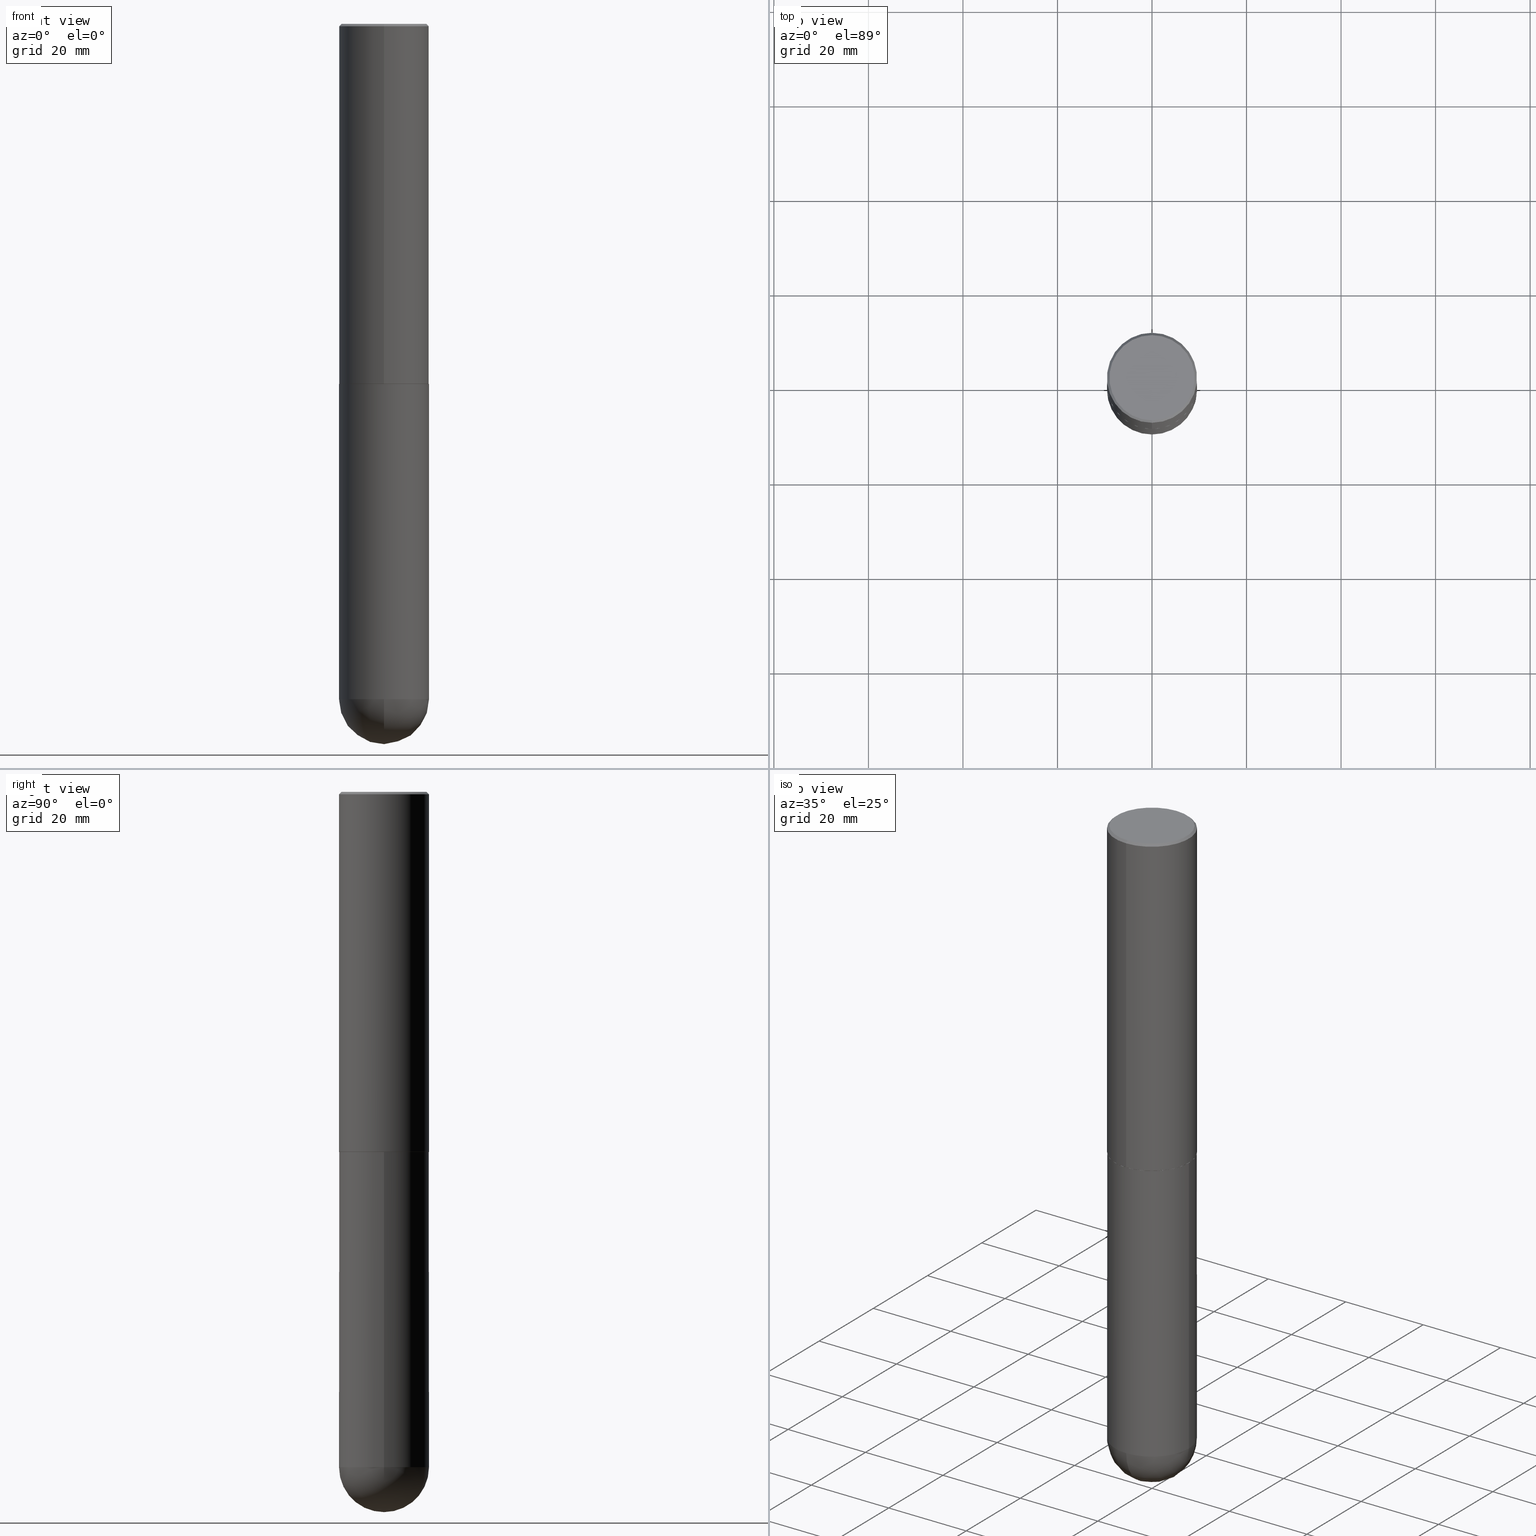
[diagram: canonical four-view strip — front | top / right | iso, engineering-drawing reading convention]
A machine part, canonical four-view strip (front | top / right | iso — engineering-drawing reading convention). The complete STEP part file that produces these views, byte-faithful:
ISO-10303-21;
HEADER;
FILE_DESCRIPTION (( 'STEP AP203' ),
    '1' );
FILE_NAME ('31926.STEP',
    '2024-02-21T17:15:48',
    ( '' ),
    ( '' ),
    'SwSTEP 2.0',
    'SolidWorks 2023',
    '' );
FILE_SCHEMA (( 'CONFIG_CONTROL_DESIGN' ));
ENDSEC;

DATA;
#1 = CC_DESIGN_DATE_AND_TIME_ASSIGNMENT ( #333, #234, ( #125 ) ) ;
#2 = CARTESIAN_POINT ( 'NONE',  ( 0.3750000000000001110, -1.767562427789342178E-14, -5.625000000000000000 ) ) ;
#3 = ORIENTED_EDGE ( 'NONE', *, *, #316, .F. ) ;
#4 = CARTESIAN_POINT ( 'NONE',  ( 7.337074380721108248E-29, -1.047348745669010864E-14, -2.999999999999999556 ) ) ;
#5 = VERTEX_POINT ( 'NONE', #10 ) ;
#6 = APPLICATION_PROTOCOL_DEFINITION ( 'international standard', 'config_control_design', 1994, #301 ) ;
#7 = ORIENTED_EDGE ( 'NONE', *, *, #323, .T. ) ;
#8 = DIRECTION ( 'NONE',  ( 6.982962677686266711E-15, 1.000000000000000000, -2.913971193241873667E-15 ) ) ;
#9 = CC_DESIGN_PERSON_AND_ORGANIZATION_ASSIGNMENT ( #25, #175, ( #238 ) ) ;
#10 = CARTESIAN_POINT ( 'NONE',  ( 2.618611004132489250E-15, 0.3749999999999805711, -5.625000000000000888 ) ) ;
#11 =( NAMED_UNIT ( * ) PLANE_ANGLE_UNIT ( ) SI_UNIT ( $, .RADIAN. ) );
#12 = DIRECTION ( 'NONE',  ( -2.445691460240369790E-29, 3.491162485563369808E-15, 1.000000000000000000 ) ) ;
#13 = DIRECTION ( 'NONE',  ( -2.445468806185136597E-29, 3.491481338843145583E-15, 1.000000000000000000 ) ) ;
#14 = AXIS2_PLACEMENT_3D ( 'NONE', #260, #395, #307 ) ;
#15 = VERTEX_POINT ( 'NONE', #324 ) ;
#16 = ADVANCED_BREP_SHAPE_REPRESENTATION ( '31926', ( #165, #29, #46 ), #397 ) ;
#17 = DIRECTION ( 'NONE',  ( -7.105427357600999492E-15, -1.000000000000000000, 0.000000000000000000 ) ) ;
#18 = DIRECTION ( 'NONE',  ( 6.982962677686266711E-15, 1.000000000000000000, -3.494488891895537218E-15 ) ) ;
#19 = EDGE_CURVE ( 'NONE', #226, #5, #177, .T. ) ;
#20 = CALENDAR_DATE ( 2024, 21, 2 ) ;
#21 = AXIS2_PLACEMENT_3D ( 'NONE', #356, #194, #104 ) ;
#22 = CIRCLE ( 'NONE', #382, 0.3750000000000001110 ) ;
#23 = APPROVAL_STATUS ( 'not_yet_approved' ) ;
#24 = DATE_AND_TIME ( #20, #266 ) ;
#25 = PERSON_AND_ORGANIZATION ( #229, #319 ) ;
#26 = APPROVAL ( #23, 'UNSPECIFIED' ) ;
#27 = AXIS2_PLACEMENT_3D ( 'NONE', #107, #82, #138 ) ;
#28 = AXIS2_PLACEMENT_3D ( 'NONE', #45, #318, #8 ) ;
#29 = MANIFOLD_SOLID_BREP ( 'Body-Move/Copy2[2]', #206 ) ;
#30 = ORIENTED_EDGE ( 'NONE', *, *, #231, .T. ) ;
#31 = DIRECTION ( 'NONE',  ( -2.445691460240369790E-29, 3.491162485563369808E-15, 1.000000000000000000 ) ) ;
#32 = EDGE_CURVE ( 'NONE', #156, #380, #408, .T. ) ;
#33 = EDGE_LOOP ( 'NONE', ( #219, #30, #355, #250 ) ) ;
#34 = CARTESIAN_POINT ( 'NONE',  ( 2.478951750578630520E-15, 0.3550000000000009259, -1.713224165233305513E-15 ) ) ;
#35 = EDGE_CURVE ( 'NONE', #314, #96, #189, .T. ) ;
#36 = ORIENTED_EDGE ( 'NONE', *, *, #137, .T. ) ;
#37 = CARTESIAN_POINT ( 'NONE',  ( 2.664535259100376486E-15, 0.3750000000000001665, -1.309185932086264368E-15 ) ) ;
#38 = AXIS2_PLACEMENT_3D ( 'NONE', #228, #389, #227 ) ;
#39 = CC_DESIGN_PERSON_AND_ORGANIZATION_ASSIGNMENT ( #160, #280, ( #338 ) ) ;
#40 = ORIENTED_EDGE ( 'NONE', *, *, #225, .F. ) ;
#41 = DIRECTION ( 'NONE',  ( -2.445691460240369790E-29, 3.491162485563369808E-15, 1.000000000000000000 ) ) ;
#42 = ORIENTED_EDGE ( 'NONE', *, *, #385, .T. ) ;
#43 = FACE_OUTER_BOUND ( 'NONE', #33, .T. ) ;
#44 = ORIENTED_EDGE ( 'NONE', *, *, #202, .T. ) ;
#45 = CARTESIAN_POINT ( 'NONE',  ( 1.342464225687750823E-28, -2.011376489913274799E-14, -5.625000000000000000 ) ) ;
#46 = AXIS2_PLACEMENT_3D ( 'NONE', #357, #360, #79 ) ;
#47 = ORIENTED_EDGE ( 'NONE', *, *, #19, .F. ) ;
#48 = FACE_OUTER_BOUND ( 'NONE', #412, .T. ) ;
#49 = EDGE_CURVE ( 'NONE', #5, #68, #400, .T. ) ;
#50 = EDGE_LOOP ( 'NONE', ( #126, #182, #7, #403, #40 ) ) ;
#51 = PERSON_AND_ORGANIZATION ( #229, #319 ) ;
#52 = FACE_OUTER_BOUND ( 'NONE', #147, .T. ) ;
#53 = ORIENTED_EDGE ( 'NONE', *, *, #188, .F. ) ;
#54 = CONICAL_SURFACE ( 'NONE', #309, 0.3739999999999999991, 0.7853981633977213939 ) ;
#55 = DIRECTION ( 'NONE',  ( -2.445468806185136597E-29, 3.491481338843145583E-15, 1.000000000000000000 ) ) ;
#56 = AXIS2_PLACEMENT_3D ( 'NONE', #4, #95, #117 ) ;
#57 = UNCERTAINTY_MEASURE_WITH_UNIT (LENGTH_MEASURE( 1.000000000000000082E-05 ), #288, 'distance_accuracy_value', 'NONE');
#58 = DIRECTION ( 'NONE',  ( -4.851104656540950864E-15, -0.7071067811865481278, -0.7071067811865469066 ) ) ;
#59 = APPROVAL_STATUS ( 'not_yet_approved' ) ;
#60 = COORDINATED_UNIVERSAL_TIME_OFFSET ( 5, 0, .BEHIND. ) ;
#61 = ADVANCED_FACE ( 'NONE', ( #52 ), #136, .F. ) ;
#62 = DATE_AND_TIME ( #339, #187 ) ;
#63 = FACE_OUTER_BOUND ( 'NONE', #118, .T. ) ;
#64 = ORIENTED_EDGE ( 'NONE', *, *, #231, .F. ) ;
#65 = DIRECTION ( 'NONE',  ( -1.000000000000000000, 6.982962677686266711E-15, -4.883557194083113462E-29 ) ) ;
#66 = ORIENTED_EDGE ( 'NONE', *, *, #396, .F. ) ;
#67 = FACE_OUTER_BOUND ( 'NONE', #269, .T. ) ;
#68 = VERTEX_POINT ( 'NONE', #327 ) ;
#69 = FACE_OUTER_BOUND ( 'NONE', #100, .T. ) ;
#70 = AXIS2_PLACEMENT_3D ( 'NONE', #273, #31, #404 ) ;
#71 = DIRECTION ( 'NONE',  ( 2.445691460240369509E-29, -3.491162485563369808E-15, -1.000000000000000000 ) ) ;
#72 = CARTESIAN_POINT ( 'NONE',  ( 7.334628689260870918E-29, -1.046999629420454738E-14, -2.999000000000000554 ) ) ;
#73 = CARTESIAN_POINT ( 'NONE',  ( 2.618611004132423381E-15, 0.3749999999999895639, -3.000000000000000888 ) ) ;
#74 = DIRECTION ( 'NONE',  ( 1.000000000000000000, -6.982962677686265922E-15, 4.876176775795935793E-29 ) ) ;
#75 = EDGE_CURVE ( 'NONE', #132, #96, #393, .T. ) ;
#76 = VECTOR ( 'NONE', #383, 39.37007874015748143 ) ;
#77 = LINE ( 'NONE', #190, #245 ) ;
#78 = LOCAL_TIME ( 12, 15, 48.00000000000000000, #399 ) ;
#79 = DIRECTION ( 'NONE',  ( 1.000000000000000000, 0.000000000000000000, 0.000000000000000000 ) ) ;
#80 = CARTESIAN_POINT ( 'NONE',  ( 1.375576203479139336E-28, -1.963958253099269612E-14, -5.625000000000000000 ) ) ;
#81 = CARTESIAN_POINT ( 'NONE',  ( -0.3750000000000000555, -1.239247801466068975E-14, -3.000000000000000444 ) ) ;
#82 = DIRECTION ( 'NONE',  ( -2.445468806185136597E-29, 3.491481338843145583E-15, 1.000000000000000000 ) ) ;
#83 = DIRECTION ( 'NONE',  ( -6.982962677686266711E-15, -1.000000000000000000, 3.491162485563370203E-15 ) ) ;
#84 = DIRECTION ( 'NONE',  ( -6.982962677686265922E-15, -1.000000000000000000, 2.913971193241877611E-15 ) ) ;
#85 = CONICAL_SURFACE ( 'NONE', #218, 0.3749999999999999445, 0.7853981633974457255 ) ;
#86 = APPROVAL_ROLE ( '' ) ;
#87 = APPROVAL_DATE_TIME ( #340, #370 ) ;
#88 = SECURITY_CLASSIFICATION_LEVEL ( 'unclassified' ) ;
#89 = EDGE_LOOP ( 'NONE', ( #53, #179, #285, #3 ) ) ;
#90 = DIRECTION ( 'NONE',  ( 4.937700262164533843E-15, 0.7071067811865431318, -0.7071067811865516806 ) ) ;
#91 = ORIENTED_EDGE ( 'NONE', *, *, #225, .T. ) ;
#92 = ADVANCED_FACE ( 'NONE', ( #163 ), #362, .T. ) ;
#93 = DIRECTION ( 'NONE',  ( -6.982962677686266711E-15, -1.000000000000000000, 2.921762560068730595E-15 ) ) ;
#94 = ORIENTED_EDGE ( 'NONE', *, *, #19, .T. ) ;
#95 = DIRECTION ( 'NONE',  ( -2.445691460240369509E-29, 3.491162485563369808E-15, 1.000000000000000000 ) ) ;
#96 = VERTEX_POINT ( 'NONE', #290 ) ;
#97 = CARTESIAN_POINT ( 'NONE',  ( 1.342464225687750823E-28, -2.011376489913274799E-14, -5.625000000000000000 ) ) ;
#98 = ORIENTED_EDGE ( 'NONE', *, *, #374, .T. ) ;
#99 = CARTESIAN_POINT ( 'NONE',  ( 7.336406418555409790E-29, -1.047444401652943635E-14, -3.000000000000000444 ) ) ;
#100 = EDGE_LOOP ( 'NONE', ( #66, #94, #308, #348 ) ) ;
#101 = DIRECTION ( 'NONE',  ( 2.438088387897960049E-29, -3.491481338843145188E-15, -1.000000000000000000 ) ) ;
#102 = DIRECTION ( 'NONE',  ( -6.982962677686265133E-15, -1.000000000000000000, 3.491162485563369808E-15 ) ) ;
#103 = AXIS2_PLACEMENT_3D ( 'NONE', #305, #119, #353 ) ;
#104 = DIRECTION ( 'NONE',  ( 1.000000000000000000, -6.982962677686265922E-15, 4.876176775795935793E-29 ) ) ;
#105 = CC_DESIGN_APPROVAL ( #370, ( #125 ) ) ;
#106 = LINE ( 'NONE', #286, #366 ) ;
#107 = CARTESIAN_POINT ( 'NONE',  ( 7.336406418555409790E-29, -1.047444401652943635E-14, -3.000000000000000444 ) ) ;
#108 = EDGE_CURVE ( 'NONE', #123, #378, #196, .T. ) ;
#109 = CARTESIAN_POINT ( 'NONE',  ( 0.000000000000000000, 0.000000000000000000, 0.000000000000000000 ) ) ;
#110 = DATE_TIME_ROLE ( 'classification_date' ) ;
#111 = CLOSED_SHELL ( 'NONE', ( #368, #402, #303, #61, #92 ) ) ;
#112 = CARTESIAN_POINT ( 'NONE',  ( -2.611628041454590638E-15, -0.3740000000000104907, -2.999999999999999112 ) ) ;
#113 = AXIS2_PLACEMENT_3D ( 'NONE', #173, #364, #84 ) ;
#114 = ADVANCED_FACE ( 'NONE', ( #258 ), #394, .T. ) ;
#115 = CONICAL_SURFACE ( 'NONE', #352, 0.3749999999999999445, 0.7853981633974457255 ) ;
#116 = ORIENTED_EDGE ( 'NONE', *, *, #32, .T. ) ;
#117 = DIRECTION ( 'NONE',  ( -6.982962677686265922E-15, -1.000000000000000000, 3.491162485563369808E-15 ) ) ;
#118 = EDGE_LOOP ( 'NONE', ( #344, #44, #300, #211 ) ) ;
#119 = DIRECTION ( 'NONE',  ( -2.445691460240369790E-29, 3.491162485563369808E-15, 1.000000000000000000 ) ) ;
#120 = CIRCLE ( 'NONE', #247, 0.3750000000000000555 ) ;
#121 = ORIENTED_EDGE ( 'NONE', *, *, #358, .F. ) ;
#122 = DIRECTION ( 'NONE',  ( -2.445691460240369790E-29, 3.491162485563369808E-15, 1.000000000000000000 ) ) ;
#123 = VERTEX_POINT ( 'NONE', #320 ) ;
#124 = DIRECTION ( 'NONE',  ( 6.982962677686266711E-15, 1.000000000000000000, -2.913971193241873667E-15 ) ) ;
#125 = PRODUCT_DEFINITION ( 'UNKNOWN', '', #238, #158 ) ;
#126 = ORIENTED_EDGE ( 'NONE', *, *, #361, .F. ) ;
#127 = CARTESIAN_POINT ( 'NONE',  ( 0.000000000000000000, 0.000000000000000000, 0.000000000000000000 ) ) ;
#128 = CIRCLE ( 'NONE', #265, 0.3739999999999999991 ) ;
#129 = VERTEX_POINT ( 'NONE', #222 ) ;
#130 = DIRECTION ( 'NONE',  ( -6.982962677686266711E-15, -1.000000000000000000, 2.921762560068730595E-15 ) ) ;
#131 = EDGE_CURVE ( 'NONE', #405, #156, #77, .T. ) ;
#132 = VERTEX_POINT ( 'NONE', #112 ) ;
#133 = CARTESIAN_POINT ( 'NONE',  ( 2.317837963926793501E-44, -3.308654864616693600E-30, -9.477229657166117026E-16 ) ) ;
#134 = EDGE_LOOP ( 'NONE', ( #36, #384, #151, #287 ) ) ;
#135 = CIRCLE ( 'NONE', #336, 0.3750000000000001110 ) ;
#136 = PLANE ( 'NONE',  #169 ) ;
#137 = EDGE_CURVE ( 'NONE', #96, #314, #170, .T. ) ;
#138 = DIRECTION ( 'NONE',  ( 1.000000000000000000, -6.982962677686266711E-15, 0.000000000000000000 ) ) ;
#139 = FACE_OUTER_BOUND ( 'NONE', #351, .T. ) ;
#140 = CARTESIAN_POINT ( 'NONE',  ( -2.572686749164323153E-15, -0.3750000000000000555, -0.01999999999999877570 ) ) ;
#141 = APPROVAL_PERSON_ORGANIZATION ( #51, #370, #86 ) ;
#142 = ADVANCED_FACE ( 'NONE', ( #199 ), #115, .T. ) ;
#143 = APPROVAL_ROLE ( '' ) ;
#144 = CC_DESIGN_PERSON_AND_ORGANIZATION_ASSIGNMENT ( #297, #232, ( #125 ) ) ;
#145 = AXIS2_PLACEMENT_3D ( 'NONE', #183, #122, #407 ) ;
#146 = CC_DESIGN_APPROVAL ( #26, ( #238 ) ) ;
#147 = EDGE_LOOP ( 'NONE', ( #312, #91 ) ) ;
#148 = PLANE ( 'NONE',  #409 ) ;
#149 = ORIENTED_EDGE ( 'NONE', *, *, #49, .T. ) ;
#150 = DIRECTION ( 'NONE',  ( -2.445468806185136597E-29, 3.491481338843145583E-15, 1.000000000000000000 ) ) ;
#151 = ORIENTED_EDGE ( 'NONE', *, *, #32, .F. ) ;
#152 = CARTESIAN_POINT ( 'NONE',  ( 4.891382920480761335E-31, -6.982324971126768903E-17, -0.02000000000000008715 ) ) ;
#153 = CIRCLE ( 'NONE', #343, 0.3550000000000009259 ) ;
#154 = EDGE_LOOP ( 'NONE', ( #277, #275, #116, #221 ) ) ;
#155 = FACE_OUTER_BOUND ( 'NONE', #192, .T. ) ;
#156 = VERTEX_POINT ( 'NONE', #140 ) ;
#157 = FACE_OUTER_BOUND ( 'NONE', #240, .T. ) ;
#158 = DESIGN_CONTEXT ( 'detailed design', #301, 'design' ) ;
#159 = DIRECTION ( 'NONE',  ( -4.937700262165896205E-15, -0.7071067811867381980, 0.7071067811863568364 ) ) ;
#160 = PERSON_AND_ORGANIZATION ( #229, #319 ) ;
#161 = EDGE_CURVE ( 'NONE', #68, #244, #330, .T. ) ;
#162 = VECTOR ( 'NONE', #220, 39.37007874015748143 ) ;
#163 = FACE_OUTER_BOUND ( 'NONE', #50, .T. ) ;
#164 = DIRECTION ( 'NONE',  ( -2.445691460240369790E-29, 3.491162485563369808E-15, 1.000000000000000000 ) ) ;
#165 = MANIFOLD_SOLID_BREP ( 'Body-Move/Copy2[1]', #111 ) ;
#166 = CARTESIAN_POINT ( 'NONE',  ( 4.891382920480761335E-31, -6.982324971126768903E-17, -0.02000000000000008715 ) ) ;
#167 = ORIENTED_EDGE ( 'NONE', *, *, #49, .F. ) ;
#168 = CYLINDRICAL_SURFACE ( 'NONE', #376, 0.3750000000000001110 ) ;
#169 = AXIS2_PLACEMENT_3D ( 'NONE', #73, #101, #256 ) ;
#170 = CIRCLE ( 'NONE', #113, 0.3750000000000003886 ) ;
#171 = DIRECTION ( 'NONE',  ( -6.982962677686265922E-15, -1.000000000000000000, 2.913971193241877611E-15 ) ) ;
#172 = DIRECTION ( 'NONE',  ( 1.000000000000000000, -6.982962677686270655E-15, 0.000000000000000000 ) ) ;
#173 = CARTESIAN_POINT ( 'NONE',  ( 7.334628689260870918E-29, -1.046999629420454738E-14, -2.999000000000000554 ) ) ;
#174 = APPROVAL_ROLE ( '' ) ;
#175 = PERSON_AND_ORGANIZATION_ROLE ( 'creator' ) ;
#176 = AXIS2_PLACEMENT_3D ( 'NONE', #178, #41, #235 ) ;
#177 = CIRCLE ( 'NONE', #38, 0.3750000000000009437 ) ;
#178 = CARTESIAN_POINT ( 'NONE',  ( 7.337074380721109369E-29, -1.047348745669011179E-14, -3.000000000000000444 ) ) ;
#179 = ORIENTED_EDGE ( 'NONE', *, *, #35, .T. ) ;
#180 = DIRECTION ( 'NONE',  ( 6.982962677686266711E-15, 1.000000000000000000, -3.494488891895537218E-15 ) ) ;
#181 = DIRECTION ( 'NONE',  ( 2.445691460240369790E-29, -3.491162485563369808E-15, -1.000000000000000000 ) ) ;
#182 = ORIENTED_EDGE ( 'NONE', *, *, #161, .T. ) ;
#183 = CARTESIAN_POINT ( 'NONE',  ( 4.891382920480761335E-31, -6.982324971126768903E-17, -0.02000000000000008715 ) ) ;
#184 = DIRECTION ( 'NONE',  ( -2.445468806185136597E-29, 3.491481338843145583E-15, 1.000000000000000000 ) ) ;
#185 = CARTESIAN_POINT ( 'NONE',  ( -2.611628041454590638E-15, -0.3740000000000104907, -2.999999999999999112 ) ) ;
#186 = CARTESIAN_POINT ( 'NONE',  ( 2.618611004132350016E-15, 0.3749999999999998890, -0.02000000000000139513 ) ) ;
#187 = LOCAL_TIME ( 12, 15, 48.00000000000000000, #293 ) ;
#188 = EDGE_CURVE ( 'NONE', #314, #380, #302, .T. ) ;
#189 = CIRCLE ( 'NONE', #254, 0.3750000000000003886 ) ;
#190 = CARTESIAN_POINT ( 'NONE',  ( -2.572686749164323153E-15, -0.3750000000000000555, -0.01999999999999877570 ) ) ;
#191 = MECHANICAL_CONTEXT ( 'NONE', #341, 'mechanical' ) ;
#192 = EDGE_LOOP ( 'NONE', ( #121, #64 ) ) ;
#193 = CARTESIAN_POINT ( 'NONE',  ( 1.342464225687750823E-28, -2.011376489913274799E-14, -5.625000000000000000 ) ) ;
#194 = DIRECTION ( 'NONE',  ( -2.445468806185136597E-29, 3.491481338843145583E-15, 1.000000000000000000 ) ) ;
#195 = DIRECTION ( 'NONE',  ( -2.445468806185136877E-29, 3.491481338843145188E-15, 1.000000000000000000 ) ) ;
#196 = CIRCLE ( 'NONE', #27, 0.3750000000000000555 ) ;
#197 = CIRCLE ( 'NONE', #391, 0.3750000000000009437 ) ;
#198 = LOCAL_TIME ( 12, 15, 48.00000000000000000, #60 ) ;
#199 = FACE_OUTER_BOUND ( 'NONE', #154, .T. ) ;
#200 = CALENDAR_DATE ( 2024, 21, 2 ) ;
#201 = PERSON_AND_ORGANIZATION ( #229, #319 ) ;
#202 = EDGE_CURVE ( 'NONE', #129, #314, #342, .T. ) ;
#203 = CALENDAR_DATE ( 2024, 21, 2 ) ;
#204 = PERSON_AND_ORGANIZATION_ROLE ( 'design_supplier' ) ;
#205 = COORDINATED_UNIVERSAL_TIME_OFFSET ( 5, 0, .BEHIND. ) ;
#206 = CLOSED_SHELL ( 'NONE', ( #241, #334, #142, #310, #114, #328, #253, #251 ) ) ;
#207 = ORIENTED_EDGE ( 'NONE', *, *, #322, .T. ) ;
#208 = SPHERICAL_SURFACE ( 'NONE', #289, 0.3750000000000009437 ) ;
#209 = ORIENTED_EDGE ( 'NONE', *, *, #213, .F. ) ;
#210 = FACE_OUTER_BOUND ( 'NONE', #134, .T. ) ;
#211 = ORIENTED_EDGE ( 'NONE', *, *, #75, .F. ) ;
#212 = CARTESIAN_POINT ( 'NONE',  ( 1.435772742711905261E-28, -2.140010827371491963E-14, -6.000000000000001776 ) ) ;
#213 = EDGE_CURVE ( 'NONE', #267, #123, #347, .T. ) ;
#214 = ORIENTED_EDGE ( 'NONE', *, *, #161, .F. ) ;
#215 = VECTOR ( 'NONE', #159, 39.37007874015748143 ) ;
#216 = CARTESIAN_POINT ( 'NONE',  ( 2.618611004132350016E-15, 0.3749999999999998890, -0.02000000000000139513 ) ) ;
#217 = VECTOR ( 'NONE', #381, 39.37007874015748143 ) ;
#218 = AXIS2_PLACEMENT_3D ( 'NONE', #152, #181, #180 ) ;
#219 = ORIENTED_EDGE ( 'NONE', *, *, #202, .F. ) ;
#220 = DIRECTION ( 'NONE',  ( -2.445691460240369790E-29, 3.491162485563369808E-15, 1.000000000000000000 ) ) ;
#221 = ORIENTED_EDGE ( 'NONE', *, *, #282, .F. ) ;
#222 = CARTESIAN_POINT ( 'NONE',  ( 2.660982545421649346E-15, 0.3739999999999895630, -3.000000000000001332 ) ) ;
#223 = SPHERICAL_SURFACE ( 'NONE', #28, 0.3750000000000009437 ) ;
#224 = VECTOR ( 'NONE', #411, 39.37007874015748143 ) ;
#225 = EDGE_CURVE ( 'NONE', #378, #123, #120, .T. ) ;
#226 = VERTEX_POINT ( 'NONE', #212 ) ;
#227 = DIRECTION ( 'NONE',  ( 6.982962677686265922E-15, 1.000000000000000000, 0.000000000000000000 ) ) ;
#228 = CARTESIAN_POINT ( 'NONE',  ( 1.342464225687750823E-28, -2.011376489913274799E-14, -5.625000000000000000 ) ) ;
#229 = PERSON ( 'UNSPECIFIED', 'UNSPECIFIED', 'UNSPECIFIED', ('UNSPECIFIED'), ('UNSPECIFIED'), ('UNSPECIFIED') ) ;
#230 = PERSON_AND_ORGANIZATION ( #229, #319 ) ;
#231 = EDGE_CURVE ( 'NONE', #129, #132, #255, .T. ) ;
#232 = PERSON_AND_ORGANIZATION_ROLE ( 'creator' ) ;
#233 = PRODUCT_RELATED_PRODUCT_CATEGORY ( 'detail', '', ( #338 ) ) ;
#234 = DATE_TIME_ROLE ( 'creation_date' ) ;
#235 = DIRECTION ( 'NONE',  ( -6.982962677686266711E-15, -1.000000000000000000, 2.921762560068730595E-15 ) ) ;
#236 = APPROVAL_PERSON_ORGANIZATION ( #201, #26, #143 ) ;
#237 = AXIS2_PLACEMENT_3D ( 'NONE', #109, #283, #279 ) ;
#238 = PRODUCT_DEFINITION_FORMATION_WITH_SPECIFIED_SOURCE ( 'ANY', '', #338, .NOT_KNOWN. ) ;
#239 = CARTESIAN_POINT ( 'NONE',  ( 2.657429831742847658E-15, 0.3739999999999895630, -3.000000000000001332 ) ) ;
#240 = EDGE_LOOP ( 'NONE', ( #207, #42 ) ) ;
#241 = ADVANCED_FACE ( 'NONE', ( #63 ), #371, .T. ) ;
#242 = CARTESIAN_POINT ( 'NONE',  ( 1.375576203479139336E-28, -1.963958253099269612E-14, -5.625000000000000000 ) ) ;
#243 = LINE ( 'NONE', #216, #261 ) ;
#244 = VERTEX_POINT ( 'NONE', #270 ) ;
#245 = VECTOR ( 'NONE', #58, 39.37007874015748143 ) ;
#246 = DIRECTION ( 'NONE',  ( -2.445691460240369790E-29, 3.491162485563369808E-15, 1.000000000000000000 ) ) ;
#247 = AXIS2_PLACEMENT_3D ( 'NONE', #99, #268, #345 ) ;
#248 = SECURITY_CLASSIFICATION ( '', '', #88 ) ;
#249 = DIRECTION ( 'NONE',  ( -2.445691460240369790E-29, 3.491162485563369808E-15, 1.000000000000000000 ) ) ;
#250 = ORIENTED_EDGE ( 'NONE', *, *, #35, .F. ) ;
#251 = ADVANCED_FACE ( 'NONE', ( #157 ), #148, .F. ) ;
#252 = ORIENTED_EDGE ( 'NONE', *, *, #361, .T. ) ;
#253 = ADVANCED_FACE ( 'NONE', ( #155 ), #276, .F. ) ;
#254 = AXIS2_PLACEMENT_3D ( 'NONE', #72, #249, #171 ) ;
#255 = CIRCLE ( 'NONE', #176, 0.3739999999999999991 ) ;
#256 = DIRECTION ( 'NONE',  ( -1.000000000000000000, 6.982962677686265922E-15, -4.876176775795935793E-29 ) ) ;
#257 = DIRECTION ( 'NONE',  ( -1.000000000000000000, 7.105427357601001070E-15, -4.926315508542082329E-29 ) ) ;
#258 = FACE_OUTER_BOUND ( 'NONE', #89, .T. ) ;
#259 = LENGTH_MEASURE_WITH_UNIT ( LENGTH_MEASURE( 0.02539999999999999897 ), #390 );
#260 = CARTESIAN_POINT ( 'NONE',  ( 1.375576203479139336E-28, -1.963958253099269612E-14, -5.625000000000000000 ) ) ;
#261 = VECTOR ( 'NONE', #90, 39.37007874015748854 ) ;
#262 = APPROVAL_STATUS ( 'not_yet_approved' ) ;
#263 = SHAPE_DEFINITION_REPRESENTATION ( #264, #16 ) ;
#264 = PRODUCT_DEFINITION_SHAPE ( 'NONE', 'NONE',  #125 ) ;
#265 = AXIS2_PLACEMENT_3D ( 'NONE', #291, #363, #130 ) ;
#266 = LOCAL_TIME ( 12, 15, 48.00000000000000000, #205 ) ;
#267 = VERTEX_POINT ( 'NONE', #2 ) ;
#268 = DIRECTION ( 'NONE',  ( -2.445468806185136597E-29, 3.491481338843145583E-15, 1.000000000000000000 ) ) ;
#269 = EDGE_LOOP ( 'NONE', ( #317, #410, #271, #304 ) ) ;
#270 = CARTESIAN_POINT ( 'NONE',  ( -2.664535259100242380E-15, -0.3750000000000204281, -5.624999999999999112 ) ) ;
#271 = ORIENTED_EDGE ( 'NONE', *, *, #282, .T. ) ;
#272 = CIRCLE ( 'NONE', #103, 0.3550000000000009259 ) ;
#273 = CARTESIAN_POINT ( 'NONE',  ( 7.337074380721109369E-29, -1.047348745669011179E-14, -3.000000000000000444 ) ) ;
#274 = DIMENSIONAL_EXPONENTS ( 1.000000000000000000, 0.000000000000000000, 0.000000000000000000, 0.000000000000000000, 0.000000000000000000, 0.000000000000000000, 0.000000000000000000 ) ;
#275 = ORIENTED_EDGE ( 'NONE', *, *, #131, .T. ) ;
#276 = PLANE ( 'NONE',  #56 ) ;
#277 = ORIENTED_EDGE ( 'NONE', *, *, #385, .F. ) ;
#278 = DIRECTION ( 'NONE',  ( -2.445691460240369790E-29, 3.491162485563369808E-15, 1.000000000000000000 ) ) ;
#279 = DIRECTION ( 'NONE',  ( -6.982962677686266711E-15, -1.000000000000000000, 3.491162485563370203E-15 ) ) ;
#280 = PERSON_AND_ORGANIZATION_ROLE ( 'design_owner' ) ;
#281 = LOCAL_TIME ( 12, 15, 48.00000000000000000, #369 ) ;
#282 = EDGE_CURVE ( 'NONE', #15, #380, #243, .T. ) ;
#283 = DIRECTION ( 'NONE',  ( -2.445691460240369790E-29, 3.491162485563369808E-15, 1.000000000000000000 ) ) ;
#284 =( NAMED_UNIT ( * ) SI_UNIT ( $, .STERADIAN. ) SOLID_ANGLE_UNIT ( ) );
#285 = ORIENTED_EDGE ( 'NONE', *, *, #406, .T. ) ;
#286 = CARTESIAN_POINT ( 'NONE',  ( -0.3750000000000001110, 2.664535259100376486E-15, -1.844600658845590159E-29 ) ) ;
#287 = ORIENTED_EDGE ( 'NONE', *, *, #406, .F. ) ;
#288 =( CONVERSION_BASED_UNIT ( 'INCH', #259 ) LENGTH_UNIT ( ) NAMED_UNIT ( #274 ) );
#289 = AXIS2_PLACEMENT_3D ( 'NONE', #97, #65, #124 ) ;
#290 = CARTESIAN_POINT ( 'NONE',  ( -2.618611004132279019E-15, -0.3750000000000108247, -2.998999999999999222 ) ) ;
#291 = CARTESIAN_POINT ( 'NONE',  ( 7.337074380721109369E-29, -1.047348745669011179E-14, -3.000000000000000444 ) ) ;
#292 = DIRECTION ( 'NONE',  ( 2.445691460240369790E-29, -3.491162485563369808E-15, -1.000000000000000000 ) ) ;
#293 = COORDINATED_UNIVERSAL_TIME_OFFSET ( 5, 0, .BEHIND. ) ;
#294 = AXIS2_PLACEMENT_3D ( 'NONE', #80, #184, #387 ) ;
#295 = CC_DESIGN_APPROVAL ( #392, ( #248 ) ) ;
#296 = CALENDAR_DATE ( 2024, 21, 2 ) ;
#297 = PERSON_AND_ORGANIZATION ( #229, #319 ) ;
#298 = AXIS2_PLACEMENT_3D ( 'NONE', #127, #246, #83 ) ;
#299 = CC_DESIGN_SECURITY_CLASSIFICATION ( #248, ( #238 ) ) ;
#300 = ORIENTED_EDGE ( 'NONE', *, *, #137, .F. ) ;
#301 = APPLICATION_CONTEXT ( 'configuration controlled 3d designs of mechanical parts and assemblies' ) ;
#302 = LINE ( 'NONE', #37, #224 ) ;
#303 = ADVANCED_FACE ( 'NONE', ( #69 ), #208, .T. ) ;
#304 = ORIENTED_EDGE ( 'NONE', *, *, #316, .T. ) ;
#305 = CARTESIAN_POINT ( 'NONE',  ( 2.317837963926793501E-44, -3.308654864616693600E-30, -9.477229657166117026E-16 ) ) ;
#306 = ORIENTED_EDGE ( 'NONE', *, *, #108, .F. ) ;
#307 = DIRECTION ( 'NONE',  ( 1.000000000000000000, -6.982962677686270655E-15, 0.000000000000000000 ) ) ;
#308 = ORIENTED_EDGE ( 'NONE', *, *, #374, .F. ) ;
#309 = AXIS2_PLACEMENT_3D ( 'NONE', #377, #278, #93 ) ;
#310 = ADVANCED_FACE ( 'NONE', ( #67 ), #85, .T. ) ;
#311 = CARTESIAN_POINT ( 'NONE',  ( 2.664535259100413562E-15, 0.3749999999999898970, -2.999000000000001442 ) ) ;
#312 = ORIENTED_EDGE ( 'NONE', *, *, #108, .T. ) ;
#313 = DIRECTION ( 'NONE',  ( 1.000000000000000000, -6.982962677686270655E-15, 0.000000000000000000 ) ) ;
#314 = VERTEX_POINT ( 'NONE', #311 ) ;
#315 = CARTESIAN_POINT ( 'NONE',  ( -2.618611004132351200E-15, -0.3750000000000001665, 1.309185932086264368E-15 ) ) ;
#316 = EDGE_CURVE ( 'NONE', #380, #156, #401, .T. ) ;
#317 = ORIENTED_EDGE ( 'NONE', *, *, #131, .F. ) ;
#318 = DIRECTION ( 'NONE',  ( -1.000000000000000000, 6.982962677686266711E-15, -4.883557194083113462E-29 ) ) ;
#319 = ORGANIZATION ( 'UNSPECIFIED', 'UNSPECIFIED', '' ) ;
#320 = CARTESIAN_POINT ( 'NONE',  ( 0.3750000000000000555, -1.309305502066178795E-14, -3.000000000000000444 ) ) ;
#321 = CARTESIAN_POINT ( 'NONE',  ( 1.375576203479139336E-28, -1.963958253099269612E-14, -5.625000000000000000 ) ) ;
#322 = EDGE_CURVE ( 'NONE', #15, #405, #272, .T. ) ;
#323 = EDGE_CURVE ( 'NONE', #244, #267, #22, .T. ) ;
#324 = CARTESIAN_POINT ( 'NONE',  ( 2.548781377355490268E-15, 0.3550000000000009259, -2.187085648091611168E-15 ) ) ;
#325 = LINE ( 'NONE', #315, #162 ) ;
#326 = CC_DESIGN_PERSON_AND_ORGANIZATION_ASSIGNMENT ( #398, #335, ( #248 ) ) ;
#327 = CARTESIAN_POINT ( 'NONE',  ( -0.3750000000000001110, -1.239247801466069291E-14, -5.625000000000000000 ) ) ;
#328 = ADVANCED_FACE ( 'NONE', ( #43 ), #54, .T. ) ;
#329 = CARTESIAN_POINT ( 'NONE',  ( 0.000000000000000000, 0.000000000000000000, 0.000000000000000000 ) ) ;
#330 = CIRCLE ( 'NONE', #14, 0.3750000000000001110 ) ;
#331 = CARTESIAN_POINT ( 'NONE',  ( 4.891382920480761335E-31, -6.982324971126768903E-17, -0.02000000000000008715 ) ) ;
#332 = DATE_AND_TIME ( #203, #78 ) ;
#333 = DATE_AND_TIME ( #296, #281 ) ;
#334 = ADVANCED_FACE ( 'NONE', ( #210 ), #379, .T. ) ;
#335 = PERSON_AND_ORGANIZATION_ROLE ( 'classification_officer' ) ;
#336 = AXIS2_PLACEMENT_3D ( 'NONE', #321, #55, #172 ) ;
#337 = APPROVAL_PERSON_ORGANIZATION ( #230, #392, #174 ) ;
#338 = PRODUCT ( '31926', '31926', '', ( #191 ) ) ;
#339 = CALENDAR_DATE ( 2024, 21, 2 ) ;
#340 = DATE_AND_TIME ( #200, #198 ) ;
#341 = APPLICATION_CONTEXT ( 'configuration controlled 3d designs of mechanical parts and assemblies' ) ;
#342 = LINE ( 'NONE', #239, #217 ) ;
#343 = AXIS2_PLACEMENT_3D ( 'NONE', #133, #164, #102 ) ;
#344 = ORIENTED_EDGE ( 'NONE', *, *, #358, .T. ) ;
#345 = DIRECTION ( 'NONE',  ( 1.000000000000000000, -6.982962677686266711E-15, 0.000000000000000000 ) ) ;
#346 = ORIENTED_EDGE ( 'NONE', *, *, #396, .T. ) ;
#347 = LINE ( 'NONE', #375, #76 ) ;
#348 = ORIENTED_EDGE ( 'NONE', *, *, #323, .F. ) ;
#349 = DIRECTION ( 'NONE',  ( 6.982962677686265922E-15, 1.000000000000000000, -3.491162485563369808E-15 ) ) ;
#350 = AXIS2_PLACEMENT_3D ( 'NONE', #166, #12, #359 ) ;
#351 = EDGE_LOOP ( 'NONE', ( #47, #346, #214, #167 ) ) ;
#352 = AXIS2_PLACEMENT_3D ( 'NONE', #331, #292, #18 ) ;
#353 = DIRECTION ( 'NONE',  ( -6.982962677686265133E-15, -1.000000000000000000, 3.491162485563369808E-15 ) ) ;
#354 = CC_DESIGN_DATE_AND_TIME_ASSIGNMENT ( #24, #110, ( #248 ) ) ;
#355 = ORIENTED_EDGE ( 'NONE', *, *, #75, .T. ) ;
#356 = CARTESIAN_POINT ( 'NONE',  ( 0.000000000000000000, 0.000000000000000000, 0.000000000000000000 ) ) ;
#357 = CARTESIAN_POINT ( 'NONE',  ( 0.000000000000000000, 0.000000000000000000, 0.000000000000000000 ) ) ;
#358 = EDGE_CURVE ( 'NONE', #132, #129, #128, .T. ) ;
#359 = DIRECTION ( 'NONE',  ( -6.982962677686266711E-15, -1.000000000000000000, 3.494488891895537218E-15 ) ) ;
#360 = DIRECTION ( 'NONE',  ( 0.000000000000000000, 0.000000000000000000, 1.000000000000000000 ) ) ;
#361 = EDGE_CURVE ( 'NONE', #68, #378, #106, .T. ) ;
#362 = CYLINDRICAL_SURFACE ( 'NONE', #21, 0.3750000000000001110 ) ;
#363 = DIRECTION ( 'NONE',  ( -2.445691460240369790E-29, 3.491162485563369808E-15, 1.000000000000000000 ) ) ;
#364 = DIRECTION ( 'NONE',  ( -2.445691460240369790E-29, 3.491162485563369808E-15, 1.000000000000000000 ) ) ;
#365 = PERSON_AND_ORGANIZATION ( #229, #319 ) ;
#366 = VECTOR ( 'NONE', #195, 39.37007874015748143 ) ;
#367 = APPROVAL_DATE_TIME ( #62, #392 ) ;
#368 = ADVANCED_FACE ( 'NONE', ( #48 ), #168, .T. ) ;
#369 = COORDINATED_UNIVERSAL_TIME_OFFSET ( 5, 0, .BEHIND. ) ;
#370 = APPROVAL ( #262, 'UNSPECIFIED' ) ;
#371 = CONICAL_SURFACE ( 'NONE', #70, 0.3739999999999999991, 0.7853981633977213939 ) ;
#372 = APPROVAL_DATE_TIME ( #332, #26 ) ;
#373 = CC_DESIGN_PERSON_AND_ORGANIZATION_ASSIGNMENT ( #365, #204, ( #238 ) ) ;
#374 = EDGE_CURVE ( 'NONE', #267, #5, #135, .T. ) ;
#375 = CARTESIAN_POINT ( 'NONE',  ( 0.3750000000000001110, -2.618611004132350411E-15, 1.828566290923476483E-29 ) ) ;
#376 = AXIS2_PLACEMENT_3D ( 'NONE', #329, #13, #74 ) ;
#377 = CARTESIAN_POINT ( 'NONE',  ( 7.337074380721109369E-29, -1.047348745669011179E-14, -3.000000000000000444 ) ) ;
#378 = VERTEX_POINT ( 'NONE', #81 ) ;
#379 = CYLINDRICAL_SURFACE ( 'NONE', #298, 0.3750000000000001665 ) ;
#380 = VERTEX_POINT ( 'NONE', #186 ) ;
#381 = DIRECTION ( 'NONE',  ( 5.024295867789434219E-15, 0.7071067811867430830, 0.7071067811863519514 ) ) ;
#382 = AXIS2_PLACEMENT_3D ( 'NONE', #242, #150, #313 ) ;
#383 = DIRECTION ( 'NONE',  ( -2.445468806185136877E-29, 3.491481338843145188E-15, 1.000000000000000000 ) ) ;
#384 = ORIENTED_EDGE ( 'NONE', *, *, #188, .T. ) ;
#385 = EDGE_CURVE ( 'NONE', #405, #15, #153, .T. ) ;
#386 = CARTESIAN_POINT ( 'NONE',  ( -2.504081769186611371E-15, -0.3550000000000009259, 2.916397166583878117E-16 ) ) ;
#387 = DIRECTION ( 'NONE',  ( 1.000000000000000000, -6.982962677686270655E-15, 0.000000000000000000 ) ) ;
#388 = APPLICATION_PROTOCOL_DEFINITION ( 'international standard', 'config_control_design', 1994, #341 ) ;
#389 = DIRECTION ( 'NONE',  ( 1.000000000000000000, -6.982962677686265922E-15, 4.883557194083112340E-29 ) ) ;
#390 =( LENGTH_UNIT ( ) NAMED_UNIT ( * ) SI_UNIT ( $, .METRE. ) );
#391 = AXIS2_PLACEMENT_3D ( 'NONE', #193, #257, #17 ) ;
#392 = APPROVAL ( #59, 'UNSPECIFIED' ) ;
#393 = LINE ( 'NONE', #185, #215 ) ;
#394 = CYLINDRICAL_SURFACE ( 'NONE', #237, 0.3750000000000001665 ) ;
#395 = DIRECTION ( 'NONE',  ( -2.445468806185136597E-29, 3.491481338843145583E-15, 1.000000000000000000 ) ) ;
#396 = EDGE_CURVE ( 'NONE', #226, #244, #197, .T. ) ;
#397 =( GEOMETRIC_REPRESENTATION_CONTEXT ( 3 ) GLOBAL_UNCERTAINTY_ASSIGNED_CONTEXT ( ( #57 ) ) GLOBAL_UNIT_ASSIGNED_CONTEXT ( ( #288, #11, #284 ) ) REPRESENTATION_CONTEXT ( 'NONE', 'WORKASPACE' ) );
#398 = PERSON_AND_ORGANIZATION ( #229, #319 ) ;
#399 = COORDINATED_UNIVERSAL_TIME_OFFSET ( 5, 0, .BEHIND. ) ;
#400 = CIRCLE ( 'NONE', #294, 0.3750000000000001110 ) ;
#401 = CIRCLE ( 'NONE', #145, 0.3749999999999999445 ) ;
#402 = ADVANCED_FACE ( 'NONE', ( #139 ), #223, .T. ) ;
#403 = ORIENTED_EDGE ( 'NONE', *, *, #213, .T. ) ;
#404 = DIRECTION ( 'NONE',  ( -6.982962677686266711E-15, -1.000000000000000000, 2.921762560068730595E-15 ) ) ;
#405 = VERTEX_POINT ( 'NONE', #386 ) ;
#406 = EDGE_CURVE ( 'NONE', #96, #156, #325, .T. ) ;
#407 = DIRECTION ( 'NONE',  ( -6.982962677686266711E-15, -1.000000000000000000, 3.494488891895537218E-15 ) ) ;
#408 = CIRCLE ( 'NONE', #350, 0.3749999999999999445 ) ;
#409 = AXIS2_PLACEMENT_3D ( 'NONE', #34, #71, #349 ) ;
#410 = ORIENTED_EDGE ( 'NONE', *, *, #322, .F. ) ;
#411 = DIRECTION ( 'NONE',  ( -2.445691460240369790E-29, 3.491162485563369808E-15, 1.000000000000000000 ) ) ;
#412 = EDGE_LOOP ( 'NONE', ( #149, #252, #306, #209, #98 ) ) ;
ENDSEC;
END-ISO-10303-21;
